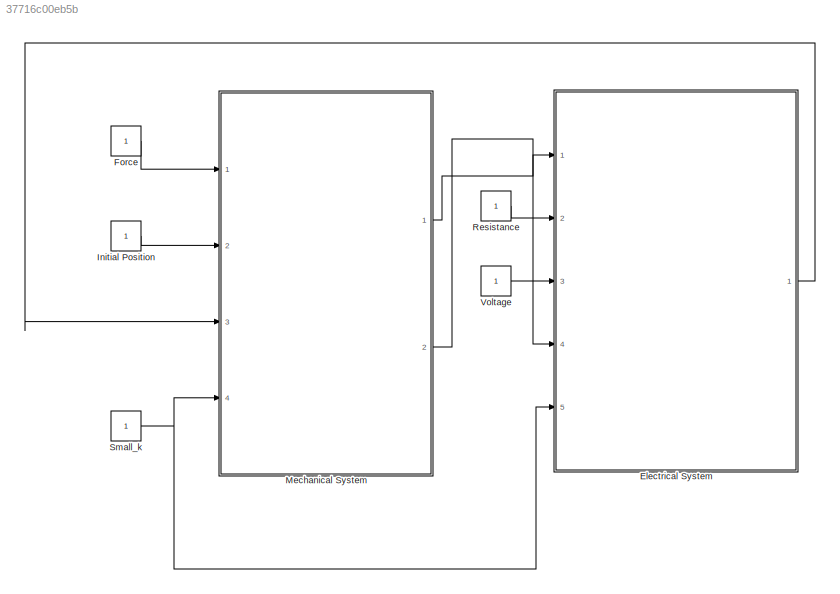
MODEL slx_37716c00eb5b
KIND model
CONFIG AbsTol = auto
CONFIG EnableMultiTasking = off
CONFIG FixedStep = auto
CONFIG MaxStep = auto
CONFIG MinStep = auto
CONFIG RelTol = 1e-3
CONFIG SampleTimeConstraint = Unconstrained
CONFIG SolverName = VariableStepAuto
CONFIG StartTime = 0.0
CONFIG StopTime = 10.0
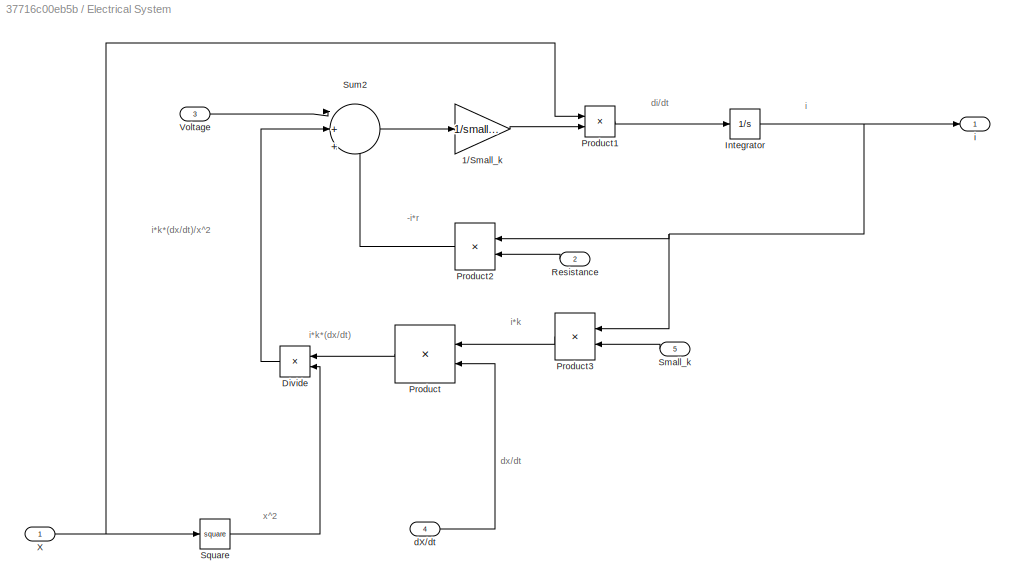
BLOCK [SubSystem] Electrical System
  Ports = [5, 1]
  RequestExecContextInheritance = off
BLOCK [Gain] Electrical System/1//Small_k
  Gain = 1/small_k
BLOCK [Product] Electrical System/Divide
  Inputs = */
  Ports = [2, 1]
BLOCK [Integrator] Electrical System/Integrator
  Ports = [1, 1]
BLOCK [Product] Electrical System/Product
  Ports = [2, 1]
BLOCK [Product] Electrical System/Product1
  Ports = [2, 1]
BLOCK [Product] Electrical System/Product2
  Ports = [2, 1]
BLOCK [Product] Electrical System/Product3
  Ports = [2, 1]
BLOCK [Inport] Electrical System/Resistance
  Port = 2
BLOCK [Inport] Electrical System/Small_k
  Port = 5
BLOCK [Math] Electrical System/Square
  Operator = square
  Ports = [1, 1]
BLOCK [Sum] Electrical System/Sum2
  Inputs = |+++
  Ports = [3, 1]
BLOCK [Inport] Electrical System/Voltage
  Port = 3
BLOCK [Inport] Electrical System/X
BLOCK [Inport] Electrical System/dX//dt
  Port = 4
BLOCK [Outport] Electrical System/i
BLOCK [Constant] Force
BLOCK [Constant] Initial Position
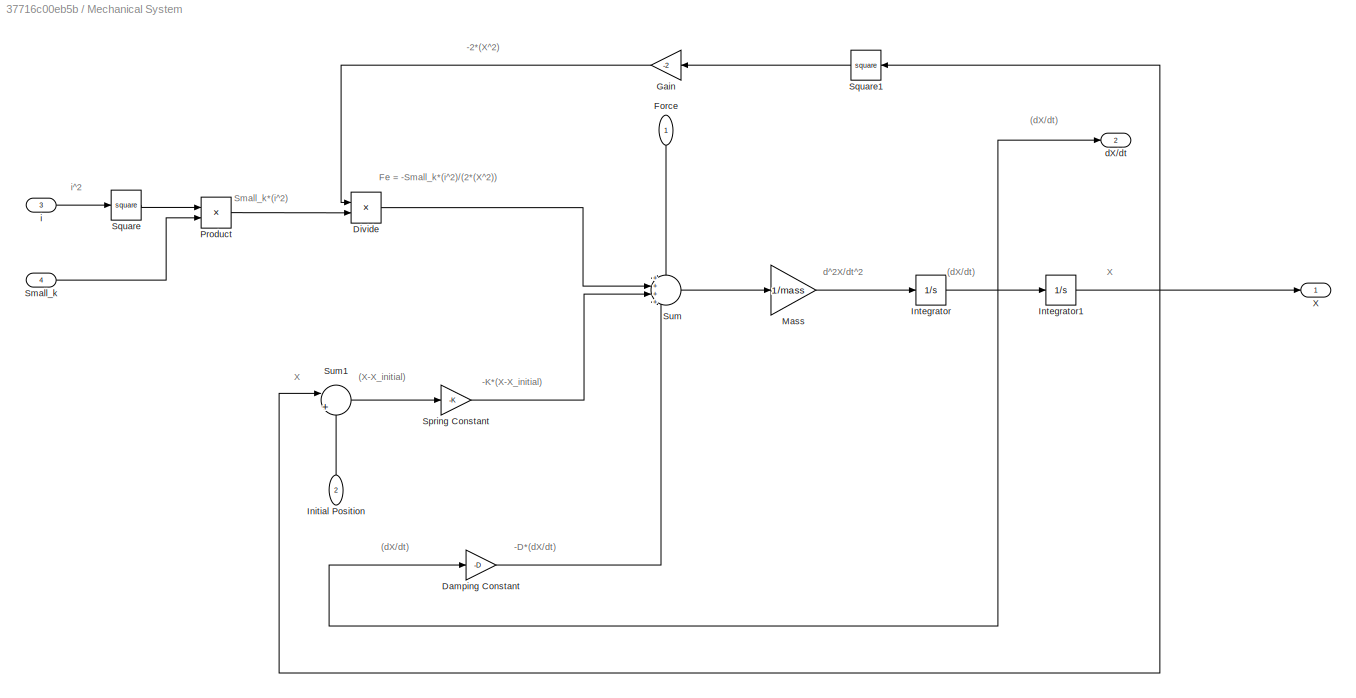
BLOCK [SubSystem] Mechanical System
  Ports = [4, 2]
  RequestExecContextInheritance = off
BLOCK [Gain] Mechanical System/Damping Constant
  Gain = -D
BLOCK [Product] Mechanical System/Divide
  Inputs = /*
  Ports = [2, 1]
BLOCK [Inport] Mechanical System/Force
  NameLocation = left
BLOCK [Gain] Mechanical System/Gain
  Gain = -2
BLOCK [Inport] Mechanical System/Initial Position
  Port = 2
BLOCK [Integrator] Mechanical System/Integrator
  Ports = [1, 1]
BLOCK [Integrator] Mechanical System/Integrator1
  Ports = [1, 1]
BLOCK [Gain] Mechanical System/Mass
  Gain = 1/mass
BLOCK [Product] Mechanical System/Product
  Ports = [2, 1]
BLOCK [Inport] Mechanical System/Small_k
  Port = 4
BLOCK [Gain] Mechanical System/Spring Constant
  Gain = -K
BLOCK [Math] Mechanical System/Square
  Operator = square
  Ports = [1, 1]
BLOCK [Math] Mechanical System/Square1
  Operator = square
  Ports = [1, 1]
BLOCK [Sum] Mechanical System/Sum
  Inputs = ++++
  Ports = [4, 1]
BLOCK [Sum] Mechanical System/Sum1
  Inputs = |++
  Ports = [2, 1]
BLOCK [Outport] Mechanical System/X
BLOCK [Outport] Mechanical System/dX//dt
  Port = 2
BLOCK [Inport] Mechanical System/i
  Port = 3
BLOCK [Constant] Resistance
BLOCK [Constant] Small_k
BLOCK [Constant] Voltage
ANNOTATION Electrical System: -i*r
ANNOTATION Electrical System: di/dt
ANNOTATION Electrical System: dx/dt
ANNOTATION Electrical System: i
ANNOTATION Electrical System: i*k
ANNOTATION Electrical System: i*k*(dx/dt)
ANNOTATION Electrical System: i*k*(dx/dt)/x^2
ANNOTATION Electrical System: x^2
ANNOTATION Mechanical System: (X-X_initial)
ANNOTATION Mechanical System: (dX/dt)
ANNOTATION Mechanical System: -2*(X^2)
ANNOTATION Mechanical System: -D*(dX/dt)
ANNOTATION Mechanical System: -K*(X-X_initial)
ANNOTATION Mechanical System: Fe = -Small_k*(i^2)/(2*(X^2))
ANNOTATION Mechanical System: Small_k*(i^2)
ANNOTATION Mechanical System: X
ANNOTATION Mechanical System: d^2X/dt^2
ANNOTATION Mechanical System: i^2
LINE Electrical System/1//Small_k:1 -> Electrical System/Product1:2
LINE Electrical System/Divide:1 -> Electrical System/Sum2:2
NET Electrical System/Integrator:1 -> Electrical System/Product2:1, Electrical System/Product3:1, Electrical System/i:1
LINE Electrical System/Product1:1 -> Electrical System/Integrator:1
LINE Electrical System/Product2:1 -> Electrical System/Sum2:3
LINE Electrical System/Product3:1 -> Electrical System/Product:1
LINE Electrical System/Product:1 -> Electrical System/Divide:1
LINE Electrical System/Resistance:1 -> Electrical System/Product2:2
LINE Electrical System/Small_k:1 -> Electrical System/Product3:2
LINE Electrical System/Square:1 -> Electrical System/Divide:2
LINE Electrical System/Sum2:1 -> Electrical System/1//Small_k:1
LINE Electrical System/Voltage:1 -> Electrical System/Sum2:1
NET Electrical System/X:1 -> Electrical System/Product1:1, Electrical System/Square:1
LINE Electrical System/dX//dt:1 -> Electrical System/Product:2
LINE Electrical System:1 -> Mechanical System:3
LINE Force:1 -> Mechanical System:1
LINE Initial Position:1 -> Mechanical System:2
LINE Mechanical System/Damping Constant:1 -> Mechanical System/Sum:4
LINE Mechanical System/Divide:1 -> Mechanical System/Sum:2
LINE Mechanical System/Force:1 -> Mechanical System/Sum:1
LINE Mechanical System/Gain:1 -> Mechanical System/Divide:1
LINE Mechanical System/Initial Position:1 -> Mechanical System/Sum1:2
NET Mechanical System/Integrator1:1 -> Mechanical System/Square1:1, Mechanical System/Sum1:1, Mechanical System/X:1
NET Mechanical System/Integrator:1 -> Mechanical System/Damping Constant:1, Mechanical System/Integrator1:1, Mechanical System/dX//dt:1
LINE Mechanical System/Mass:1 -> Mechanical System/Integrator:1
LINE Mechanical System/Product:1 -> Mechanical System/Divide:2
LINE Mechanical System/Small_k:1 -> Mechanical System/Product:2
LINE Mechanical System/Spring Constant:1 -> Mechanical System/Sum:3
LINE Mechanical System/Square1:1 -> Mechanical System/Gain:1
LINE Mechanical System/Square:1 -> Mechanical System/Product:1
LINE Mechanical System/Sum1:1 -> Mechanical System/Spring Constant:1
LINE Mechanical System/Sum:1 -> Mechanical System/Mass:1
LINE Mechanical System/i:1 -> Mechanical System/Square:1
LINE Mechanical System:1 -> Electrical System:1
LINE Mechanical System:2 -> Electrical System:4
LINE Resistance:1 -> Electrical System:2
NET Small_k:1 -> Electrical System:5, Mechanical System:4
LINE Voltage:1 -> Electrical System:3
note: NET lines group one-source signal fan-out (src -> all destinations, sorted); 1:1 wires keep LINE
